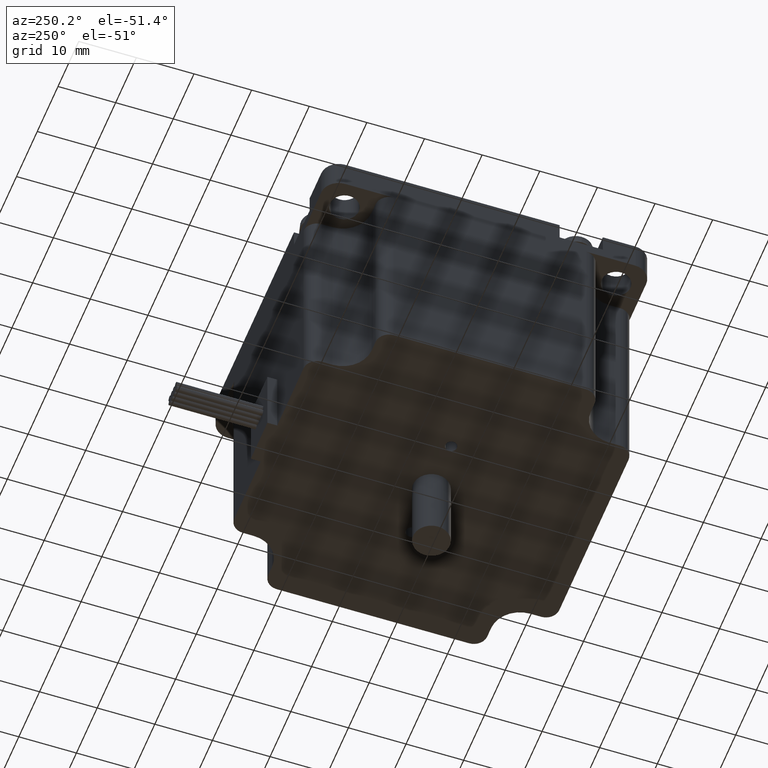
[diagram: clean part render]
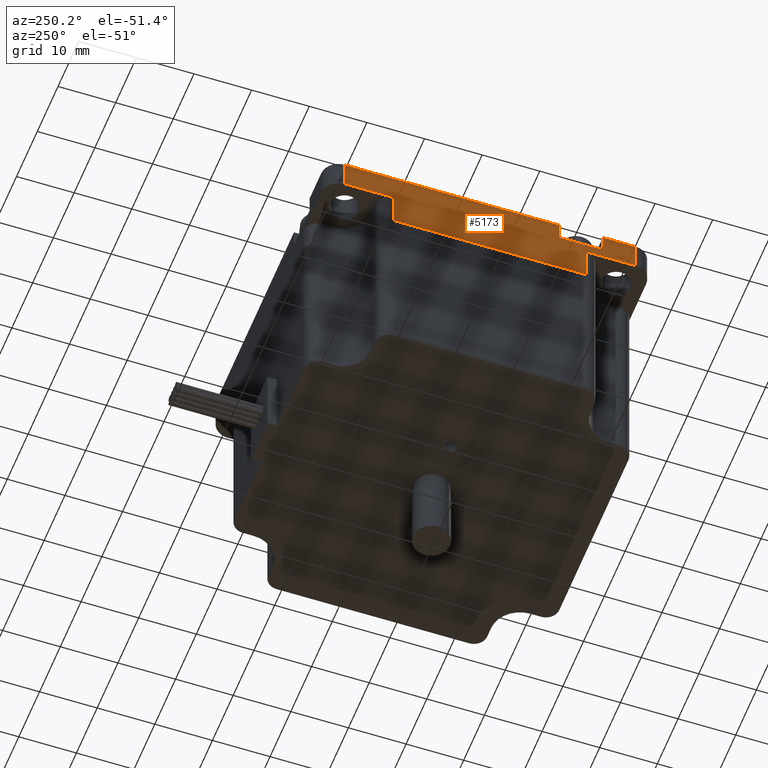
[diagram: same view with one face highlighted and labeled with its STEP entity id]
A machine part, auxiliary view. The second image highlights one B-rep face of the part: STEP entity #5173.
In plain terms, the highlighted planar face has unit normal (-1, 0, 0).
Its self-contained STEP definition (entity closure, byte-faithful):
#174=LINE('',#7803,#540);
#180=LINE('',#7818,#546);
#181=LINE('',#7820,#547);
#200=LINE('',#7869,#566);
#209=LINE('',#7894,#575);
#223=LINE('',#7940,#589);
#233=LINE('',#7979,#599);
#234=LINE('',#7982,#600);
#235=LINE('',#7984,#601);
#236=LINE('',#7985,#602);
#237=LINE('',#7987,#603);
#238=LINE('',#7988,#604);
#540=VECTOR('',#6165,10.);
#546=VECTOR('',#6179,10.);
#547=VECTOR('',#6182,10.);
#566=VECTOR('',#6227,10.);
#575=VECTOR('',#6246,10.);
#589=VECTOR('',#6284,10.);
#599=VECTOR('',#6316,10.);
#600=VECTOR('',#6319,10.);
#601=VECTOR('',#6320,10.);
#602=VECTOR('',#6321,10.);
#603=VECTOR('',#6322,10.);
#604=VECTOR('',#6323,10.);
#918=PLANE('',#5550);
#1161=FACE_OUTER_BOUND('',#1499,.T.);
#1499=EDGE_LOOP('',(#3550,#3551,#3552,#3553,#3554,#3555,#3556,#3557,#3558,
#3559,#3560,#3561));
#2161=VERTEX_POINT('',#7799);
#2163=VERTEX_POINT('',#7802);
#2167=VERTEX_POINT('',#7814);
#2168=VERTEX_POINT('',#7816);
#2185=VERTEX_POINT('',#7868);
#2196=VERTEX_POINT('',#7892);
#2215=VERTEX_POINT('',#7937);
#2216=VERTEX_POINT('',#7939);
#2234=VERTEX_POINT('',#7977);
#2235=VERTEX_POINT('',#7981);
#2236=VERTEX_POINT('',#7983);
#2237=VERTEX_POINT('',#7986);
#2670=EDGE_CURVE('',#2163,#2161,#174,.T.);
#2678=EDGE_CURVE('',#2167,#2168,#180,.T.);
#2679=EDGE_CURVE('',#2161,#2167,#181,.T.);
#2702=EDGE_CURVE('',#2185,#2163,#200,.T.);
#2716=EDGE_CURVE('',#2168,#2196,#209,.T.);
#2739=EDGE_CURVE('',#2215,#2216,#223,.T.);
#2759=EDGE_CURVE('',#2234,#2215,#233,.T.);
#2760=EDGE_CURVE('',#2235,#2196,#234,.T.);
#2761=EDGE_CURVE('',#2236,#2235,#235,.T.);
#2762=EDGE_CURVE('',#2216,#2236,#236,.T.);
#2763=EDGE_CURVE('',#2237,#2234,#237,.T.);
#2764=EDGE_CURVE('',#2185,#2237,#238,.T.);
#3550=ORIENTED_EDGE('',*,*,#2678,.T.);
#3551=ORIENTED_EDGE('',*,*,#2716,.T.);
#3552=ORIENTED_EDGE('',*,*,#2760,.F.);
#3553=ORIENTED_EDGE('',*,*,#2761,.F.);
#3554=ORIENTED_EDGE('',*,*,#2762,.F.);
#3555=ORIENTED_EDGE('',*,*,#2739,.F.);
#3556=ORIENTED_EDGE('',*,*,#2759,.F.);
#3557=ORIENTED_EDGE('',*,*,#2763,.F.);
#3558=ORIENTED_EDGE('',*,*,#2764,.F.);
#3559=ORIENTED_EDGE('',*,*,#2702,.T.);
#3560=ORIENTED_EDGE('',*,*,#2670,.T.);
#3561=ORIENTED_EDGE('',*,*,#2679,.T.);
#5173=ADVANCED_FACE('',(#1161),#918,.T.);
#5550=AXIS2_PLACEMENT_3D('',#7980,#6317,#6318);
#6165=DIRECTION('',(0.,0.,-1.));
#6179=DIRECTION('',(0.,0.,1.));
#6182=DIRECTION('',(0.,1.,1.48142892999246E-31));
#6227=DIRECTION('',(0.,1.,0.));
#6246=DIRECTION('',(0.,1.,0.));
#6284=DIRECTION('',(0.,1.,0.));
#6316=DIRECTION('',(0.,0.,-1.));
#6317=DIRECTION('center_axis',(-1.,0.,0.));
#6318=DIRECTION('ref_axis',(0.,0.,1.));
#6319=DIRECTION('',(0.,0.,1.));
#6320=DIRECTION('',(0.,1.,0.));
#6321=DIRECTION('',(0.,0.,1.));
#6322=DIRECTION('',(0.,1.,0.));
#6323=DIRECTION('',(0.,0.,-1.));
#7799=CARTESIAN_POINT('',(-28.2,-19.6031500416704,1.50000000506639));
#7802=CARTESIAN_POINT('',(-28.2,-19.6031500416704,4.7000000050664));
#7803=CARTESIAN_POINT('',(-28.2,-19.6031500416704,-0.799999994933605));
#7814=CARTESIAN_POINT('',(-28.2,-12.1031500416704,1.50000000506639));
#7816=CARTESIAN_POINT('',(-28.2,-12.1031500416704,4.7000000050664));
#7818=CARTESIAN_POINT('',(-28.2,-12.1031500416704,-0.799999994933605));
#7820=CARTESIAN_POINT('',(-28.2,-22.0265750208352,1.50000000506639));
#7868=CARTESIAN_POINT('',(-28.2,-25.2,4.7000000050664));
#7869=CARTESIAN_POINT('',(-28.2,-28.2,4.7000000050664));
#7892=CARTESIAN_POINT('',(-28.2,25.2,4.7000000050664));
#7894=CARTESIAN_POINT('',(-28.2,-28.2,4.7000000050664));
#7937=CARTESIAN_POINT('',(-28.2,-16.7,-6.29999999493361));
#7939=CARTESIAN_POINT('',(-28.2,16.7,-6.29999999493361));
#7940=CARTESIAN_POINT('',(-28.2,-28.2,-6.29999999493361));
#7977=CARTESIAN_POINT('',(-28.2,-16.7,-0.299999994933604));
#7979=CARTESIAN_POINT('',(-28.2,-16.7,-6.29999999493361));
#7980=CARTESIAN_POINT('Origin',(-28.2,-28.2,-6.29999999493361));
#7981=CARTESIAN_POINT('',(-28.2,25.2,-0.299999994933604));
#7982=CARTESIAN_POINT('',(-28.2,25.2,-6.29999999493361));
#7983=CARTESIAN_POINT('',(-28.2,16.7,-0.299999994933604));
#7984=CARTESIAN_POINT('',(-28.2,-2.21872829968026,-0.299999994933604));
#7985=CARTESIAN_POINT('',(-28.2,16.7,-6.29999999493361));
#7986=CARTESIAN_POINT('',(-28.2,-25.2,-0.299999994933604));
#7987=CARTESIAN_POINT('',(-28.2,-25.9812717003197,-0.299999994933604));
#7988=CARTESIAN_POINT('',(-28.2,-25.2,-6.29999999493361));